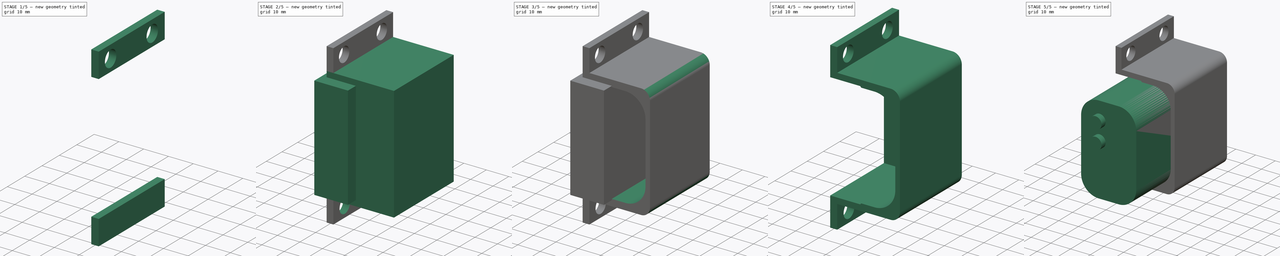
[diagram: build sequence overview — one tinted view per stage of 5, left to right]
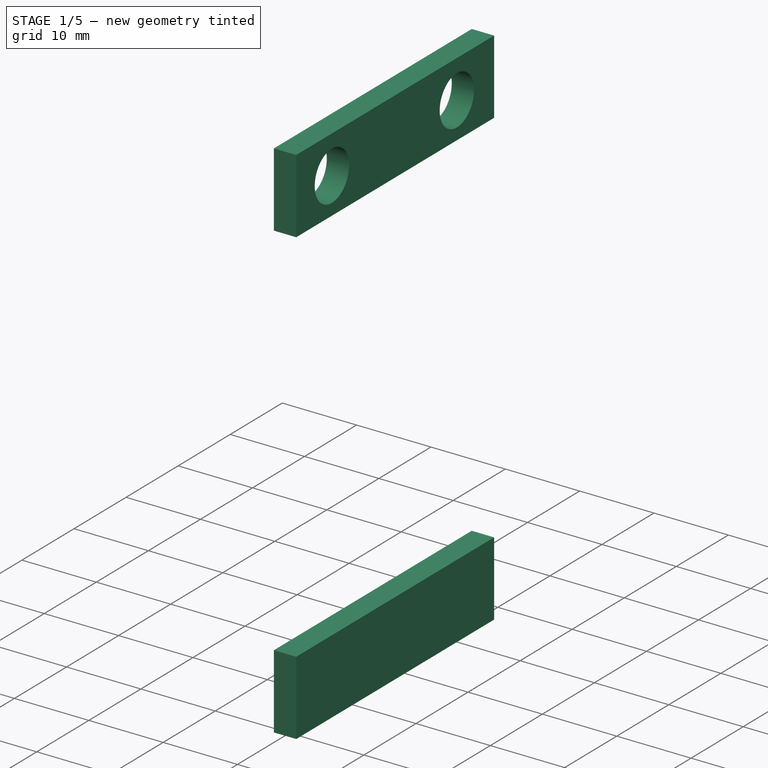
[diagram: stage 1 of 5 — iso view after this stage's code; geometry added in this stage tinted green]
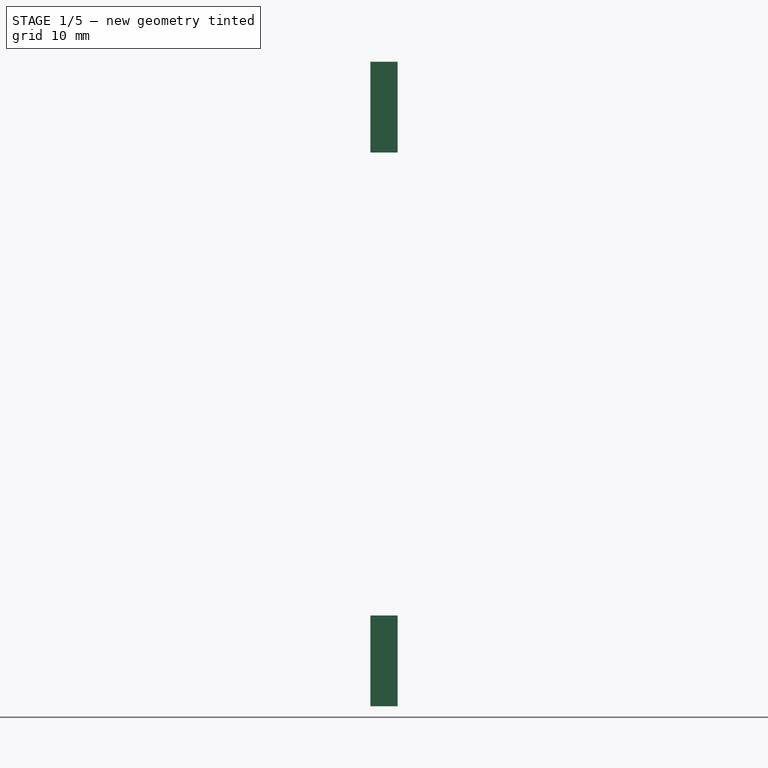
[diagram: stage 1 of 5 — front view after this stage's code; geometry added in this stage tinted green]
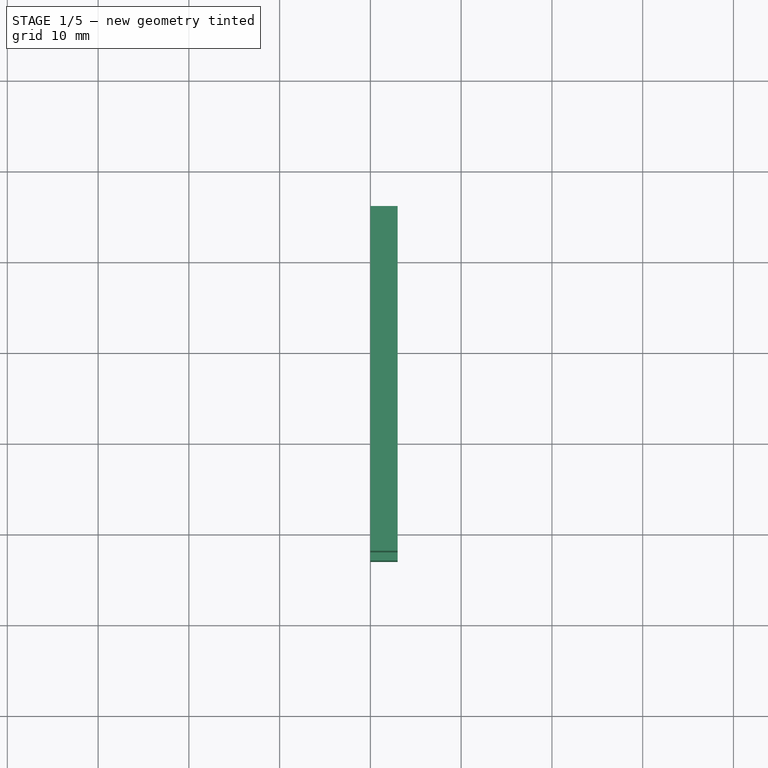
[diagram: stage 1 of 5 — top view after this stage's code; geometry added in this stage tinted green]
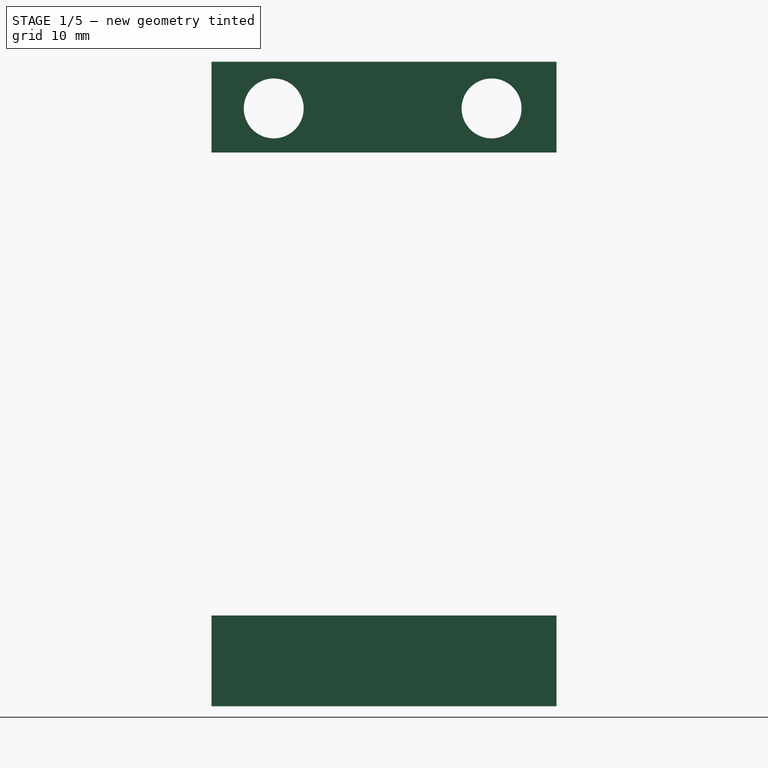
[diagram: stage 1 of 5 — right view after this stage's code; geometry added in this stage tinted green]
FCSTD DOCUMENT  (FreeCAD 0.16R6712 (Git))
Label: AS
License: All rights reserved
LicenseURL: http://en.wikipedia.org/wiki/All_rights_reserved
objects: Sketcher::SketchObject×6, PartDesign::Pad×4, Part::Box×4, Part::Cut×2, Part::Chamfer×2, PartDesign::Pocket×2, Part::Fillet×1, Part::MultiFuse×1
note: 28 computed .brp shape members not serialized (recipe doc carries the construction recipe); baked Part::Feature solids carry a one-line shape summary decoded from their .brp

FEATURE [Part::Box] Box002  label="Cubo002"
  Height = 10
  Length = 3
  Placement = pos=(0,-33,-13) rot=(0,0,1;0rad)
  Width = 38
FEATURE [Part::Box] Box003  label="Cubo003"
  Height = 10
  Length = 3
  Placement = pos=(0,-33,48) rot=(0,0,1;0rad)
  Width = 38
FEATURE [Sketcher::SketchObject] Sketch003
  Placement = pos=(3,-33,48) rot=(0.57735,0.57735,0.57735;2.0944rad)
  Support = -> Box003 [Face2]
  sketch-geometry (3):
    g0: Circle CenterX=6.8496 CenterY=4.86339 CenterZ=0 NormalX=0 NormalY=0 NormalZ=1 Radius=3.3
    g1: Circle CenterX=30.854 CenterY=4.86339 CenterZ=0 NormalX=0 NormalY=0 NormalZ=1 Radius=3.3
    g2: LineSegment [constr] StartX=6.8496 StartY=4.86339 StartZ=0 EndX=30.854 EndY=4.86339 EndZ=0
  constraints (5):
    c: Radius(g0) = 3.3
    c: Equal(g0,g1) = 3.3
    c: Coincident(g2,g0)
    c: Coincident(g2,g1)
    c: Horizontal(g2)
FEATURE [PartDesign::Pocket] Pocket001
  Length = 5
  Placement = pos=(0,-33,48) rot=(0,0,1;0rad)
  Sketch = -> Sketch003
  Type = 0
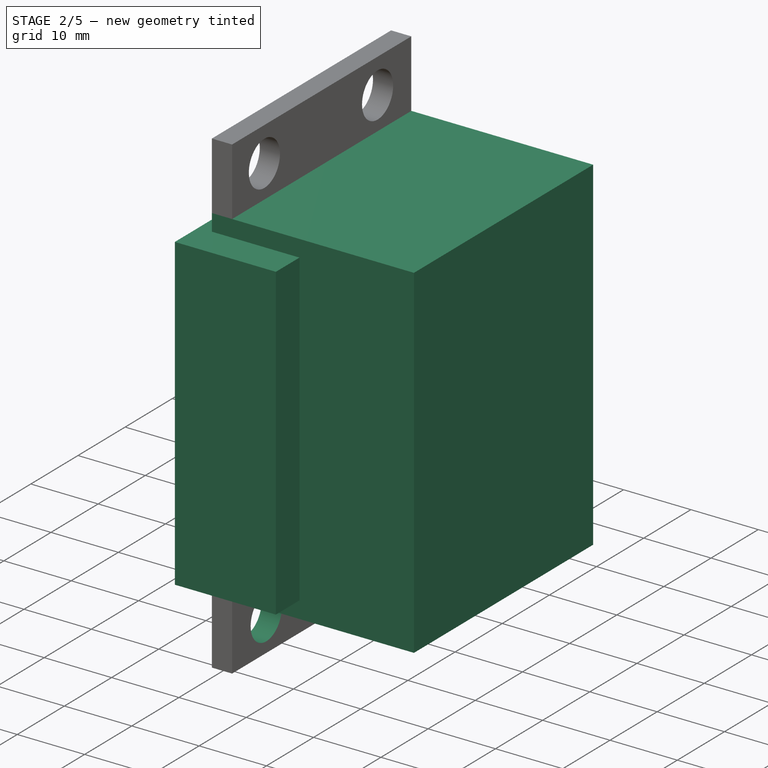
[diagram: stage 2 of 5 — iso view after this stage's code; geometry added in this stage tinted green]
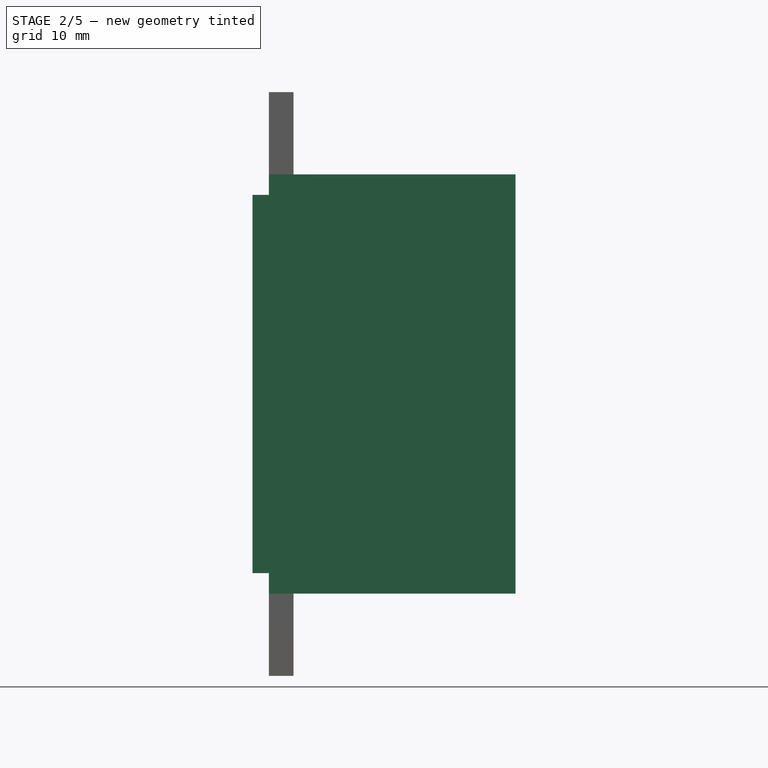
[diagram: stage 2 of 5 — front view after this stage's code; geometry added in this stage tinted green]
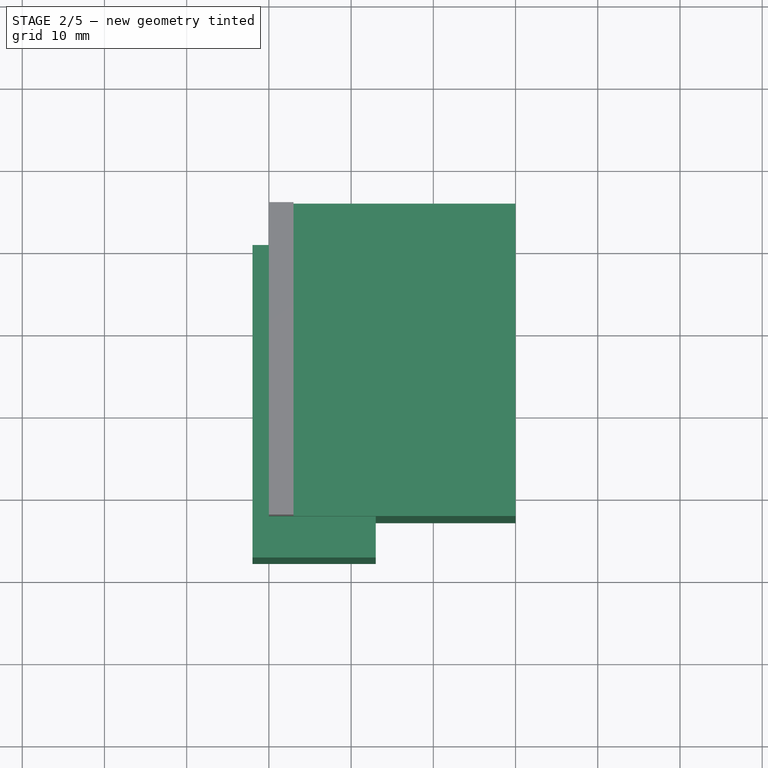
[diagram: stage 2 of 5 — top view after this stage's code; geometry added in this stage tinted green]
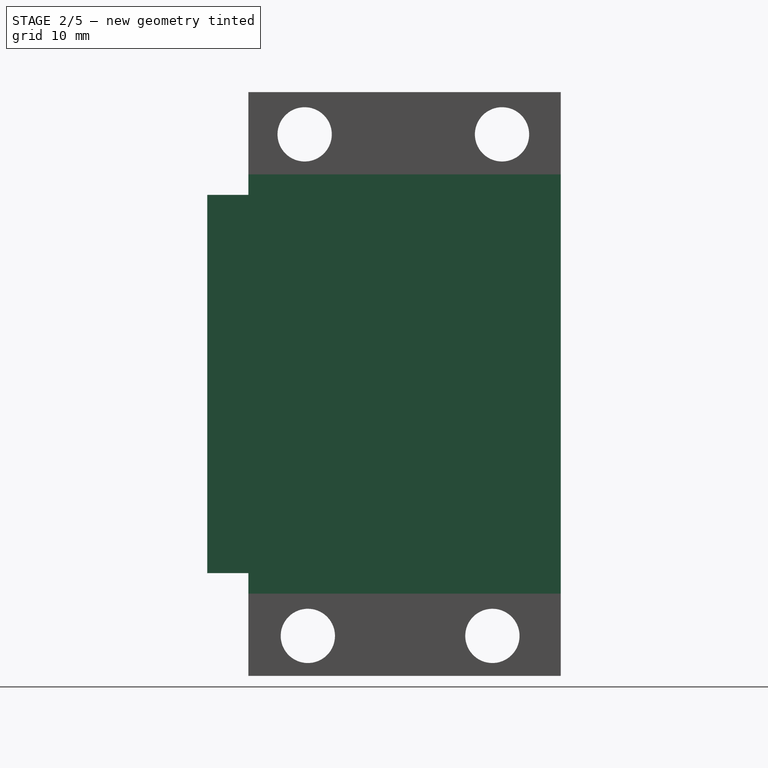
[diagram: stage 2 of 5 — right view after this stage's code; geometry added in this stage tinted green]
FEATURE [Part::Box] Box  label="Cubo"
  Height = 51
  Length = 30
  Placement = pos=(0,-33,-3) rot=(0,0,1;0rad)
  Width = 38
FEATURE [Part::Box] Box001  label="Cubo001"
  Height = 46
  Length = 15
  Placement = pos=(-2,-38,-0.5) rot=(0,0,1;0rad)
  Width = 38
FEATURE [Sketcher::SketchObject] Sketch002
  Placement = pos=(3,-33,-13) rot=(0.57735,0.57735,0.57735;2.0944rad)
  Support = -> Box002 [Face2]
  sketch-geometry (6):
    g0: Circle CenterX=7.23731 CenterY=4.86262 CenterZ=0 NormalX=0 NormalY=0 NormalZ=1 Radius=3.3
    g1: Circle CenterX=29.6847 CenterY=4.86262 CenterZ=0 NormalX=0 NormalY=0 NormalZ=1 Radius=3.3
    g2: LineSegment [constr] StartX=29.6847 StartY=4.86262 StartZ=0 EndX=7.23731 EndY=4.86262 EndZ=0
    g3: Circle CenterX=7.88607 CenterY=65.8468 CenterZ=0 NormalX=0 NormalY=0 NormalZ=1 Radius=3.3
    g4: LineSegment [constr] StartX=30.3335 StartY=65.8468 StartZ=0 EndX=7.88607 EndY=65.8468 EndZ=0
    g5: Circle CenterX=30.3335 CenterY=65.8468 CenterZ=0 NormalX=0 NormalY=0 NormalZ=1 Radius=3.3
  constraints (10):
    c: Radius(g0) = 3.3
    c: Equal(g0,g1) = 3.3
    c: Coincident(g2,g1)
    c: Coincident(g2,g0)
    c: Horizontal(g2)
    c: Equal(g0,g3) = 3.3
    c: Equal(g3,g5) = 3.3
    c: Coincident(g4,g5)
    c: Coincident(g4,g3)
    c: Horizontal(g4)
FEATURE [PartDesign::Pocket] Pocket
  Length = 5
  Placement = pos=(0,-33,-13) rot=(0,0,1;0rad)
  Sketch = -> Sketch002
  Type = 0
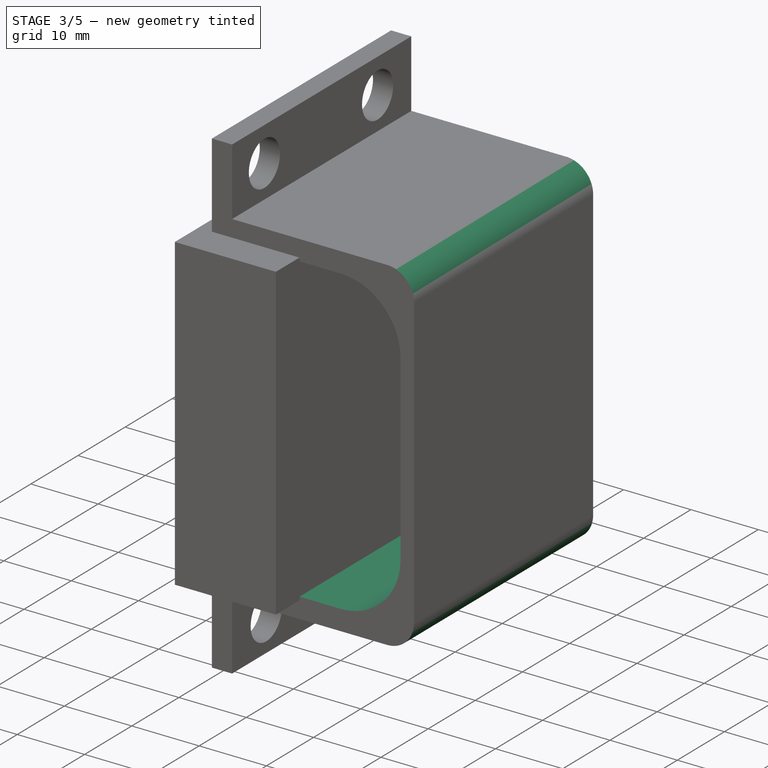
[diagram: stage 3 of 5 — iso view after this stage's code; geometry added in this stage tinted green]
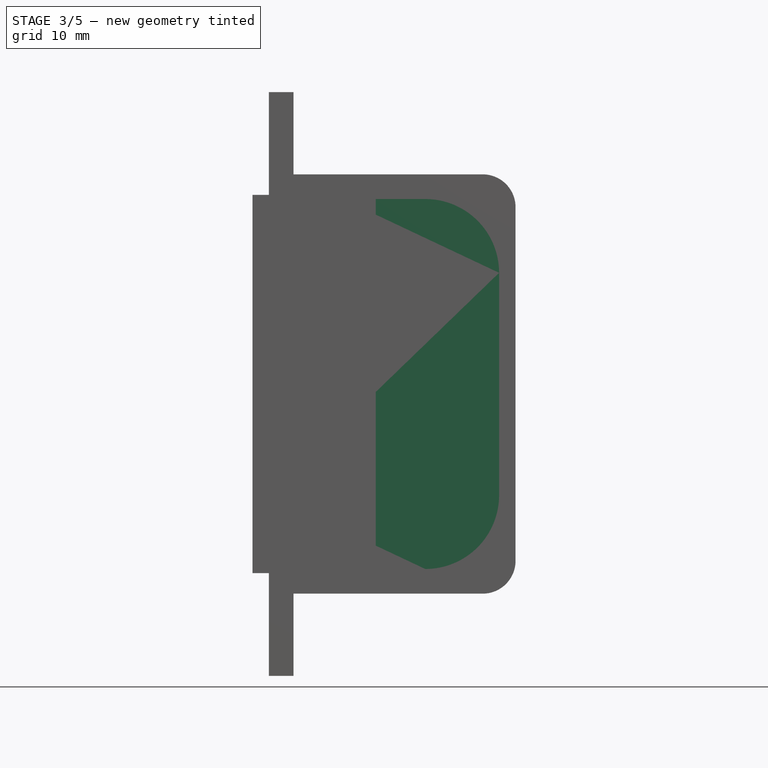
[diagram: stage 3 of 5 — front view after this stage's code; geometry added in this stage tinted green]
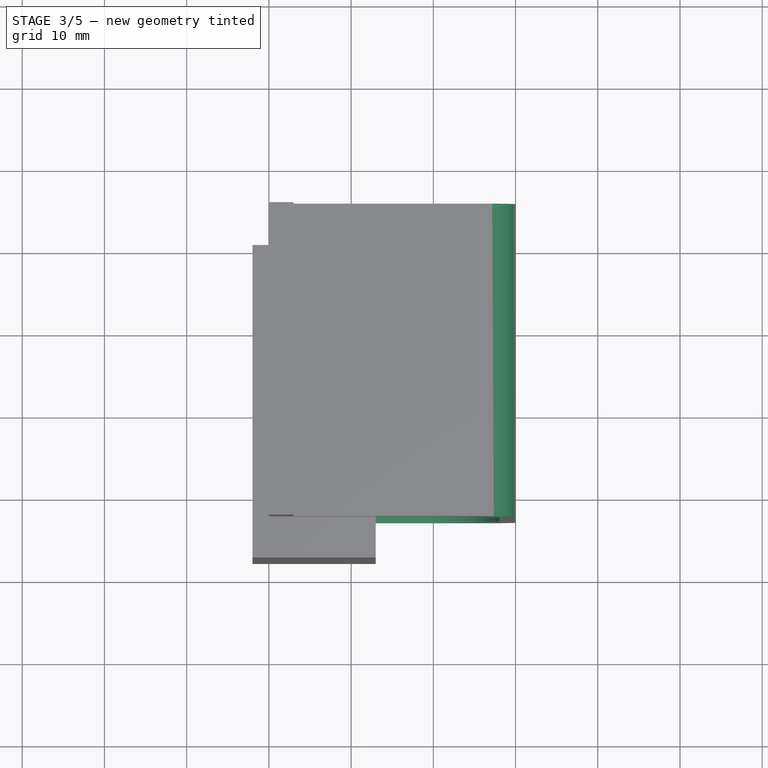
[diagram: stage 3 of 5 — top view after this stage's code; geometry added in this stage tinted green]
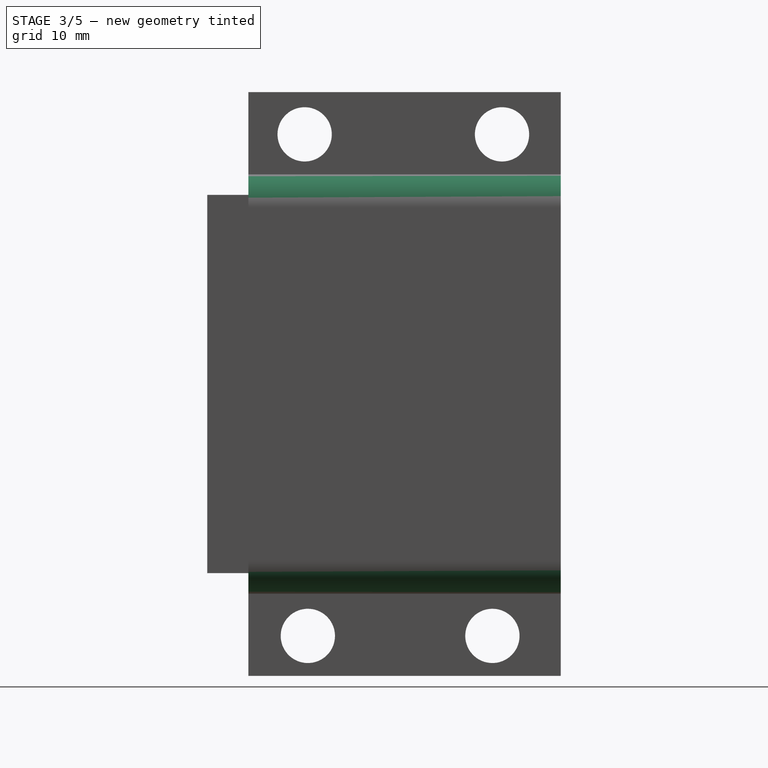
[diagram: stage 3 of 5 — right view after this stage's code; geometry added in this stage tinted green]
FEATURE [Sketcher::SketchObject] Sketch
  Placement = pos=(0,0,0) rot=(1,0,0;1.5708rad)
  sketch-geometry (34):
    g0: LineSegment [constr] StartX=0 StartY=0 StartZ=0 EndX=28 EndY=0 EndZ=0
    g1: LineSegment [constr] StartX=28 StartY=0 StartZ=0 EndX=28 EndY=45 EndZ=0
    g2: LineSegment [constr] StartX=28 StartY=45 StartZ=0 EndX=0 EndY=45 EndZ=0
    g3: LineSegment [constr] StartX=0 StartY=45 StartZ=0 EndX=0 EndY=0 EndZ=0
    g4: LineSegment [constr] StartX=0 StartY=45 StartZ=0 EndX=28 EndY=17 EndZ=0
    g5: LineSegment [constr] StartX=28 StartY=45 StartZ=0 EndX=0 EndY=17 EndZ=0
    g6: LineSegment [constr] StartX=28 StartY=0 StartZ=0 EndX=0 EndY=28 EndZ=0
    g7: LineSegment [constr] StartX=0 StartY=45 StartZ=0 EndX=8.97473 EndY=36.0253 EndZ=0
    g8: LineSegment [constr] StartX=28 StartY=0 StartZ=0 EndX=19.0253 EndY=8.97473 EndZ=0
    g9: LineSegment [constr] StartX=19.0253 StartY=8.97473 StartZ=0 EndX=8.97473 EndY=8.97473 EndZ=0
    g10: LineSegment [constr] StartX=8.97473 StartY=8.97473 StartZ=0 EndX=8.97473 EndY=36.0253 EndZ=0
    g11: LineSegment [constr] StartX=8.97473 StartY=36.0253 StartZ=0 EndX=19.0253 EndY=36.0253 EndZ=0
    g12: LineSegment [constr] StartX=19.0253 StartY=36.0253 StartZ=0 EndX=19.0253 EndY=8.97473 EndZ=0
    g13: GeomPoint [constr] X=0 Y=36.0253 Z=0
    g14: GeomPoint [constr] X=28 Y=36.0253 Z=0
    g15: GeomPoint [constr] X=19.0253 Y=45 Z=0
    g16: GeomPoint [constr] X=8.97473 Y=45 Z=0
    g17: GeomPoint [constr] X=0 Y=8.97475 Z=0
    g18: GeomPoint [constr] X=8.97473 Y=0 Z=0
    g19: GeomPoint [constr] X=19.0253 Y=0 Z=0
    g20: GeomPoint [constr] X=28 Y=8.97475 Z=0
    g21: ArcOfCircle CenterX=8.97473 CenterY=36.0253 CenterZ=0 NormalX=0 NormalY=0 NormalZ=1 Radius=8.97473 StartAngle=1.5708 EndAngle=3.14159
    g22: ArcOfCircle CenterX=19.0253 CenterY=36.0253 CenterZ=0 NormalX=0 NormalY=0 NormalZ=1 Radius=8.97473 StartAngle=6.28318 EndAngle=7.85398
    g23: ArcOfCircle CenterX=19.0253 CenterY=8.97473 CenterZ=0 NormalX=0 NormalY=0 NormalZ=1 Radius=8.97473 StartAngle=4.71239 EndAngle=6.28319
    g24: ArcOfCircle CenterX=8.97473 CenterY=8.97473 CenterZ=0 NormalX=0 NormalY=0 NormalZ=1 Radius=8.97473 StartAngle=3.14159 EndAngle=4.71239
    g25: LineSegment [constr] StartX=8.97473 StartY=45 StartZ=0 EndX=8.97473 EndY=36.0253 EndZ=0
    g26: LineSegment [constr] StartX=19.0253 StartY=45 StartZ=0 EndX=19.0253 EndY=36.0253 EndZ=0
    g27: LineSegment [constr] StartX=8.97473 StartY=0 StartZ=0 EndX=8.97473 EndY=8.97473 EndZ=0
    g28: LineSegment [constr] StartX=19.0253 StartY=0 StartZ=0 EndX=19.0253 EndY=8.97473 EndZ=0
    g29: LineSegment [constr] StartX=8.97473 StartY=36.0253 StartZ=0 EndX=0 EndY=36.0253 EndZ=0
    g30: LineSegment StartX=0 StartY=36.0253 StartZ=0 EndX=0 EndY=8.97475 EndZ=0
    g31: LineSegment StartX=8.97473 StartY=45 StartZ=0 EndX=19.0253 EndY=45 EndZ=0
    g32: LineSegment StartX=28 StartY=36.0253 StartZ=0 EndX=28 EndY=8.97475 EndZ=0
    g33: LineSegment StartX=19.0253 StartY=0 StartZ=0 EndX=8.97473 EndY=0 EndZ=0
  constraints (77):
    c: Coincident(g0,g1)
    c: Coincident(g1,g2)
    c: Coincident(g2,g3)
    c: Coincident(g3,g0)
    c: Horizontal(g2)
    c: Vertical(g1)
    c: Vertical(g3)
    c: Coincident(g0,g-1)
    c: DistanceY(g1,g1) = 45
    c: DistanceX(g2,g2) = 28
    c: Coincident(g4,g2)
    c: PointOnObject(g4,g1)
    c: Angle(g4,g2) = 0.785398
    c: Coincident(g5,g1)
    c: PointOnObject(g5,g3)
    c: Coincident(g6,g0)
    c: PointOnObject(g6,g3)
    c: Angle(g6,g0) = 0.785398
    c: Angle(g2,g5) = 0.785398
    c: Coincident(g7,g2)
    c: Coincident(g8,g0)
    c: PointOnObject(g8,g6)
    c: Equal(g7,g8)
    c: Coincident(g9,g10)
    c: Coincident(g10,g11)
    c: Coincident(g11,g12)
    c: Coincident(g12,g9)
    c: Horizontal(g9)
    c: Horizontal(g11)
    c: Vertical(g10)
    c: Vertical(g12)
    c: Coincident(g9,g8)
    c: PointOnObject(g0,g-1)
    c: PointOnObject(g13,g3)
    c: PointOnObject(g16,g2)
    c: PointOnObject(g15,g2)
    c: PointOnObject(g14,g1)
    c: PointOnObject(g20,g1)
    c: PointOnObject(g19,g0)
    c: PointOnObject(g18,g0)
    c: PointOnObject(g17,g3)
    c: Coincident(g21,g7)
    c: Coincident(g21,g13)
    c: Coincident(g21,g16)
    c: Coincident(g22,g11)
    c: Coincident(g22,g15)
    c: Coincident(g22,g14)
    c: Coincident(g23,g8)
    c: Coincident(g23,g19)
    c: Coincident(g23,g20)
    c: Coincident(g24,g9)
    c: Coincident(g24,g18)
    c: Coincident(g24,g17)
    c: Coincident(g25,g16)
    c: Coincident(g25,g10)
    c: Vertical(g25)
    c: Coincident(g26,g15)
    c: Coincident(g26,g11)
    c: Vertical(g26)
    c: Coincident(g27,g18)
    c: Coincident(g27,g9)
    c: Vertical(g27)
    c: Coincident(g28,g19)
    c: Coincident(g28,g8)
    c: Vertical(g28)
    c: Coincident(g29,g7)
    c: Coincident(g29,g13)
    c: Horizontal(g29)
    c: Coincident(g7,g10)
    c: Coincident(g30,g13)
    c: Coincident(g30,g17)
    c: Coincident(g31,g16)
    c: Coincident(g31,g15)
    c: Coincident(g32,g14)
    c: Coincident(g32,g20)
    c: Coincident(g33,g19)
    c: Coincident(g33,g18)
FEATURE [PartDesign::Pad] Pad
  Length = 58
  Length2 = 100
  Placement = pos=(0,0,0) rot=(1,0,0;1.5708rad)
  Sketch = -> Sketch
  Type = 0
FEATURE [Sketcher::SketchObject] Sketch001
  Placement = pos=(0,-58,0) rot=(1,0,0;1.5708rad)
  Support = -> Pad [Face10]
  sketch-geometry (3):
    g0: Circle CenterX=9.3858 CenterY=35.94 CenterZ=0 NormalX=0 NormalY=0 NormalZ=1 Radius=3.08287
    g1: Circle CenterX=9.3858 CenterY=26.4856 CenterZ=0 NormalX=0 NormalY=0 NormalZ=1 Radius=3.08287
    g2: LineSegment [constr] StartX=9.3858 StartY=35.94 StartZ=0 EndX=9.3858 EndY=26.4856 EndZ=0
  constraints (4):
    c: Coincident(g2,g0)
    c: Coincident(g2,g1)
    c: Vertical(g2)
    c: Equal(g1,g0)
FEATURE [PartDesign::Pad] Pad001
  Length = 3
  Length2 = 100
  Placement = pos=(0,0,0) rot=(1,0,0;1.5708rad)
  Sketch = -> Sketch001
  Type = 0
FEATURE [Part::Fillet] Fillet
  Base = -> Box
  Edges = 2 edges r=4: [Edge6,Edge8]
FEATURE [Part::Cut] Cut
  Base = -> Fillet
  Tool = -> Pad001
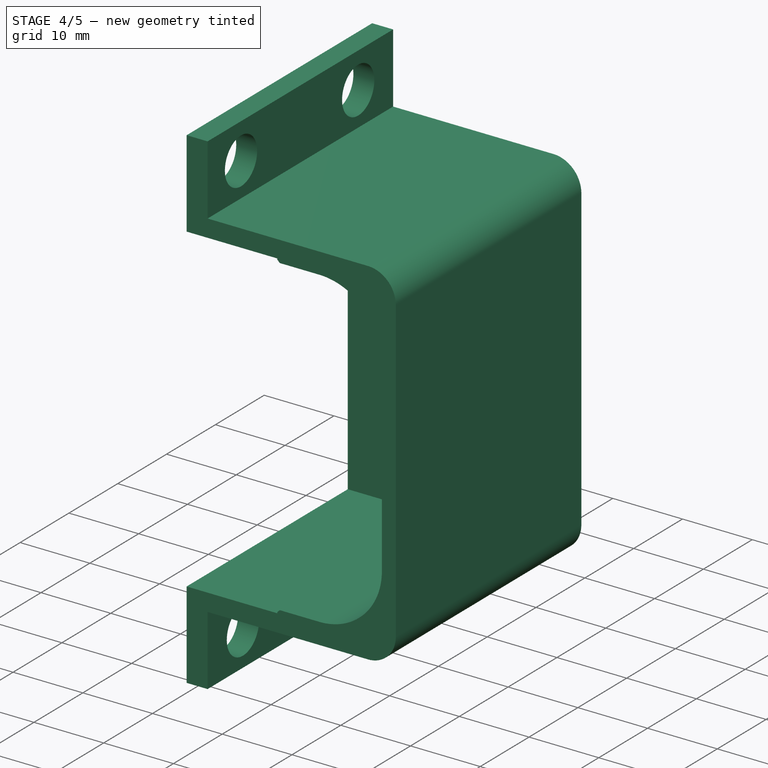
[diagram: stage 4 of 5 — iso view after this stage's code; geometry added in this stage tinted green]
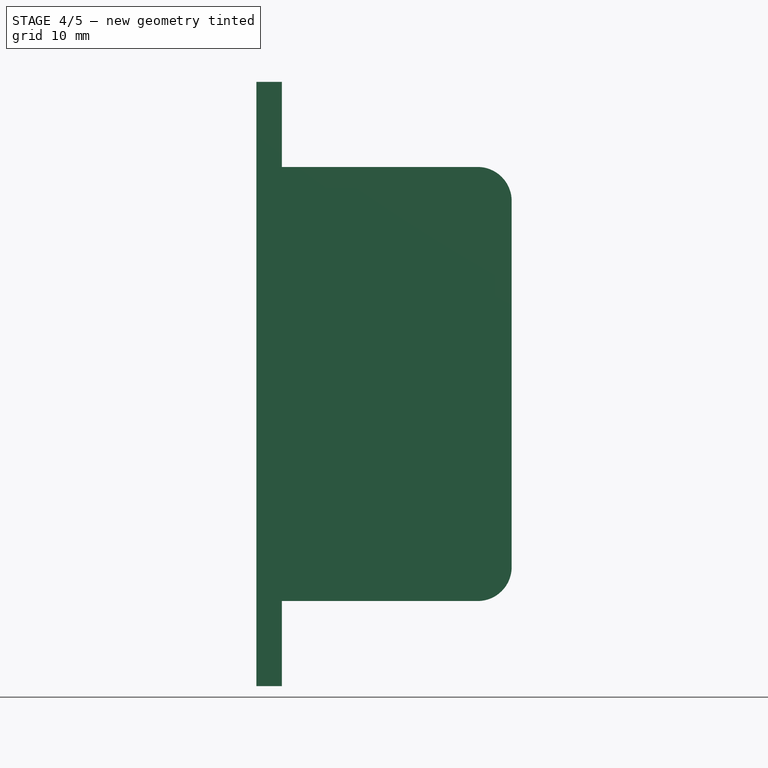
[diagram: stage 4 of 5 — front view after this stage's code; geometry added in this stage tinted green]
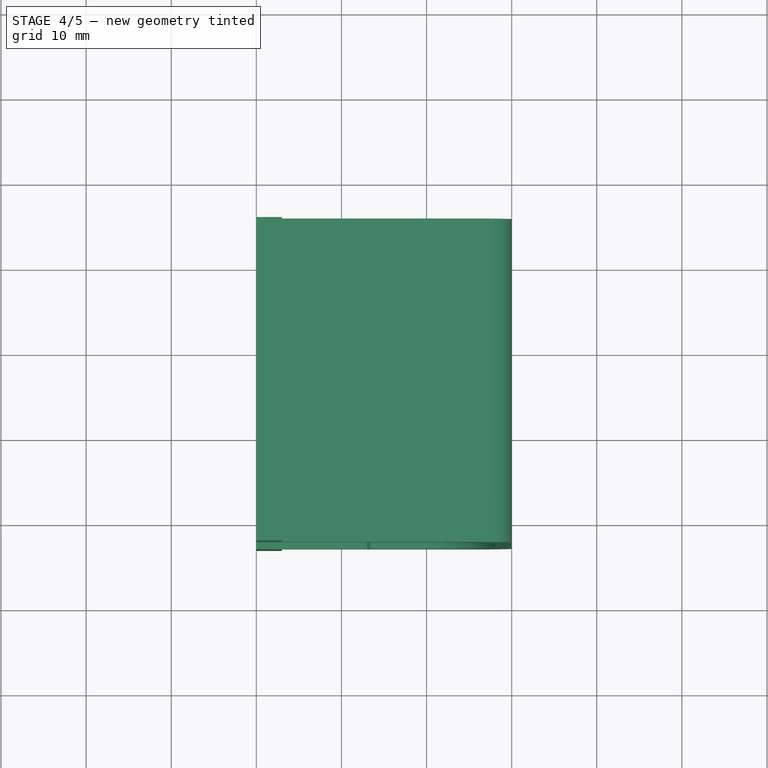
[diagram: stage 4 of 5 — top view after this stage's code; geometry added in this stage tinted green]
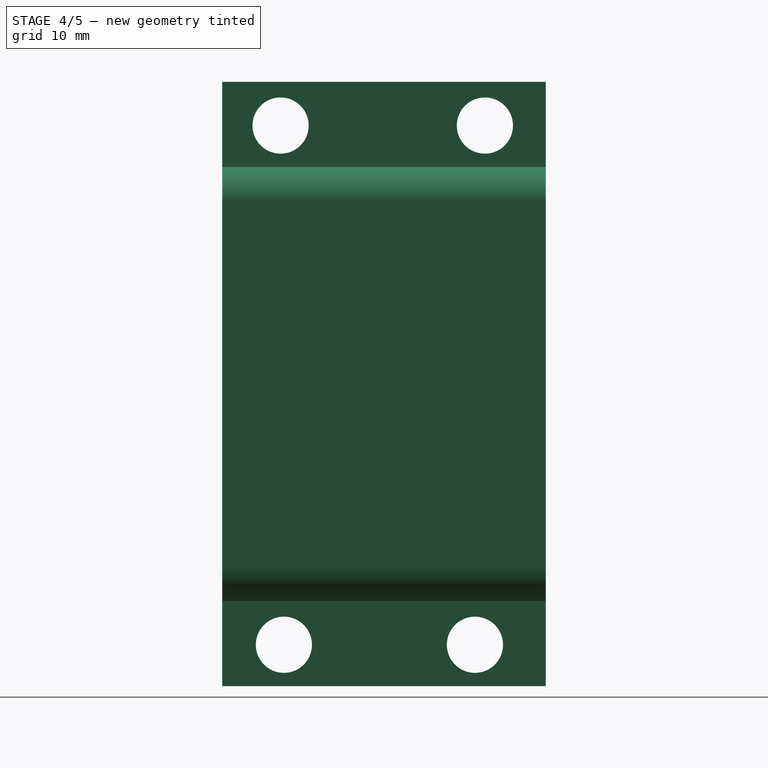
[diagram: stage 4 of 5 — right view after this stage's code; geometry added in this stage tinted green]
FEATURE [Part::Cut] Cut001
  Base = -> Cut
  Tool = -> Box001
FEATURE [Part::Chamfer] Chamfer
  Base = -> Cut001
  Edges = 1 edges r=0.35: [Edge36]
FEATURE [Part::Chamfer] Chamfer001
  Base = -> Chamfer
  Edges = 1 edges r=0.35: [Edge48]
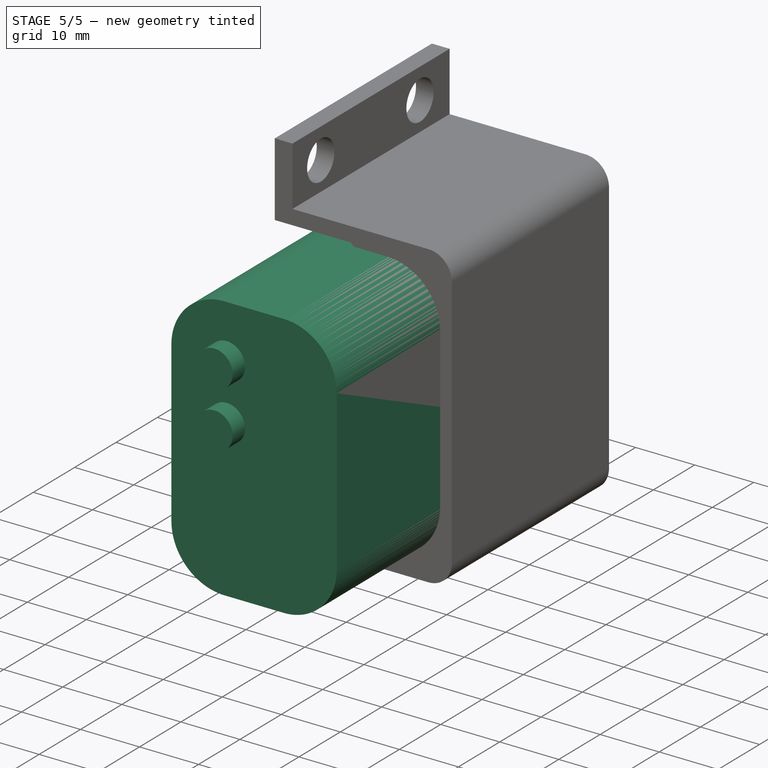
[diagram: stage 5 of 5 — iso view after this stage's code; geometry added in this stage tinted green]
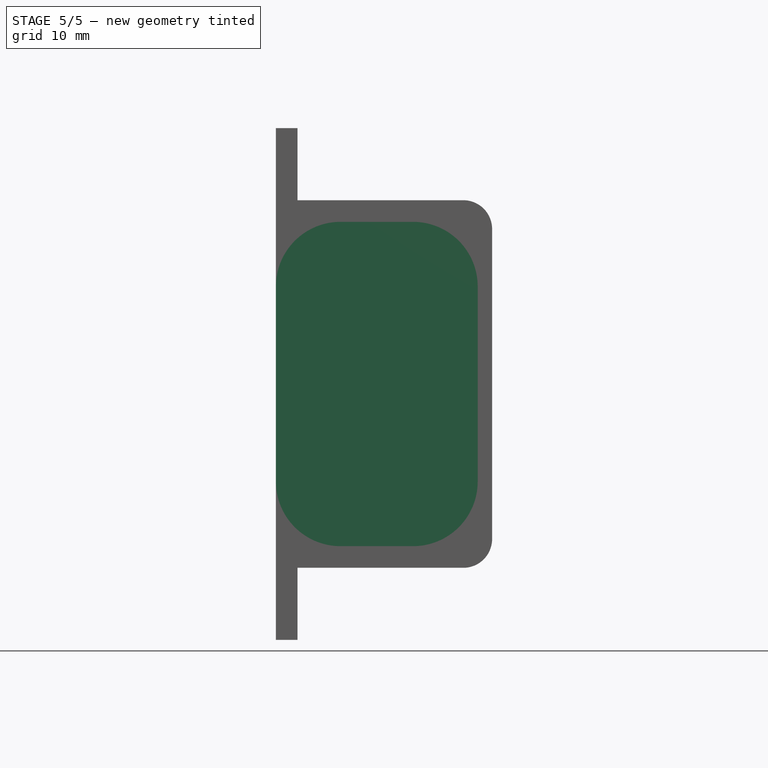
[diagram: stage 5 of 5 — front view after this stage's code; geometry added in this stage tinted green]
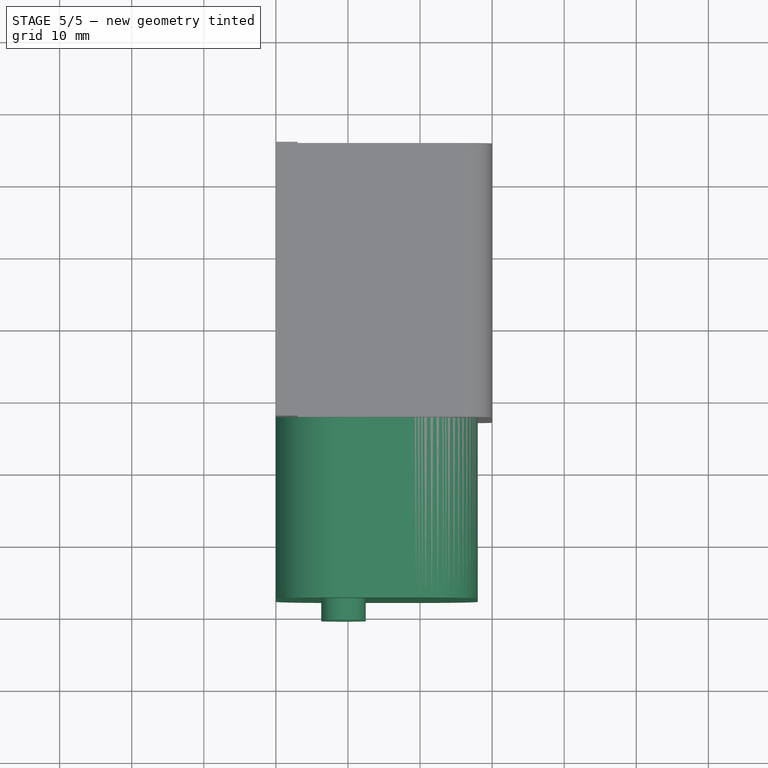
[diagram: stage 5 of 5 — top view after this stage's code; geometry added in this stage tinted green]
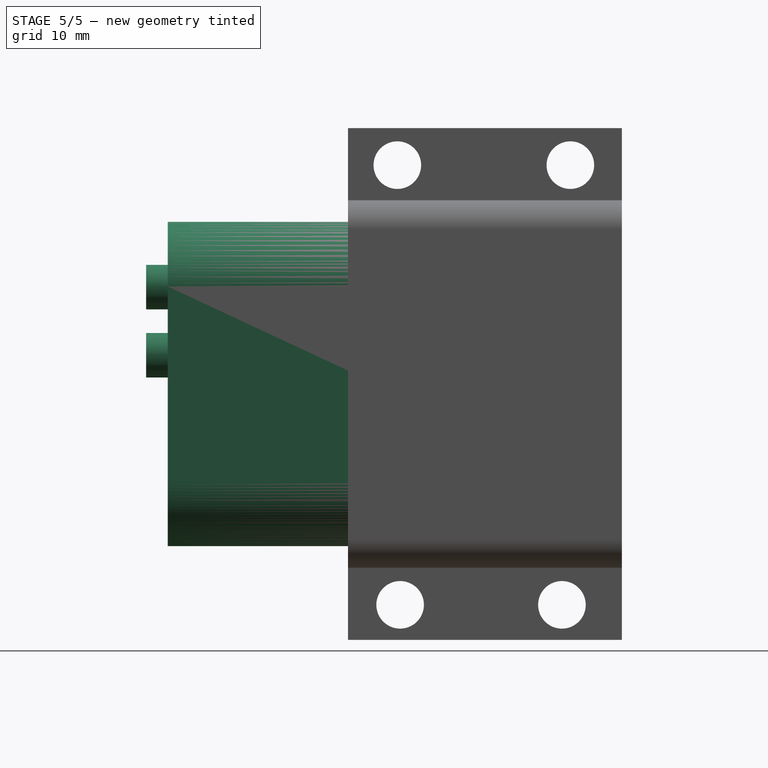
[diagram: stage 5 of 5 — right view after this stage's code; geometry added in this stage tinted green]
FEATURE [Sketcher::SketchObject] Sketch004
  Placement = pos=(0,0,0) rot=(1,0,0;1.5708rad)
  sketch-geometry (34):
    g0: LineSegment [constr] StartX=0 StartY=0 StartZ=0 EndX=28 EndY=0 EndZ=0
    g1: LineSegment [constr] StartX=28 StartY=0 StartZ=0 EndX=28 EndY=45 EndZ=0
    g2: LineSegment [constr] StartX=28 StartY=45 StartZ=0 EndX=0 EndY=45 EndZ=0
    g3: LineSegment [constr] StartX=0 StartY=45 StartZ=0 EndX=0 EndY=0 EndZ=0
    g4: LineSegment [constr] StartX=0 StartY=45 StartZ=0 EndX=28 EndY=17 EndZ=0
    g5: LineSegment [constr] StartX=28 StartY=45 StartZ=0 EndX=0 EndY=17 EndZ=0
    g6: LineSegment [constr] StartX=28 StartY=0 StartZ=0 EndX=0 EndY=28 EndZ=0
    g7: LineSegment [constr] StartX=0 StartY=45 StartZ=0 EndX=8.97473 EndY=36.0253 EndZ=0
    g8: LineSegment [constr] StartX=28 StartY=0 StartZ=0 EndX=19.0253 EndY=8.97473 EndZ=0
    g9: LineSegment [constr] StartX=19.0253 StartY=8.97473 StartZ=0 EndX=8.97473 EndY=8.97473 EndZ=0
    g10: LineSegment [constr] StartX=8.97473 StartY=8.97473 StartZ=0 EndX=8.97473 EndY=36.0253 EndZ=0
    g11: LineSegment [constr] StartX=8.97473 StartY=36.0253 StartZ=0 EndX=19.0253 EndY=36.0253 EndZ=0
    g12: LineSegment [constr] StartX=19.0253 StartY=36.0253 StartZ=0 EndX=19.0253 EndY=8.97473 EndZ=0
    g13: GeomPoint [constr] X=0 Y=36.0253 Z=0
    g14: GeomPoint [constr] X=28 Y=36.0253 Z=0
    g15: GeomPoint [constr] X=19.0253 Y=45 Z=0
    g16: GeomPoint [constr] X=8.97473 Y=45 Z=0
    g17: GeomPoint [constr] X=2.7e-11 Y=8.97475 Z=0
    g18: GeomPoint [constr] X=8.97473 Y=0 Z=0
    g19: GeomPoint [constr] X=19.0253 Y=0 Z=0
    g20: GeomPoint [constr] X=28 Y=8.97475 Z=0
    g21: ArcOfCircle CenterX=8.97473 CenterY=36.0253 CenterZ=0 NormalX=0 NormalY=0 NormalZ=1 Radius=8.97473 StartAngle=1.5708 EndAngle=3.14159
    g22: ArcOfCircle CenterX=19.0253 CenterY=36.0253 CenterZ=0 NormalX=0 NormalY=0 NormalZ=1 Radius=8.97473 StartAngle=6.28318 EndAngle=7.85398
    g23: ArcOfCircle CenterX=19.0253 CenterY=8.97473 CenterZ=0 NormalX=0 NormalY=0 NormalZ=1 Radius=8.97473 StartAngle=4.71239 EndAngle=6.28319
    g24: ArcOfCircle CenterX=8.97473 CenterY=8.97473 CenterZ=0 NormalX=0 NormalY=0 NormalZ=1 Radius=8.97473 StartAngle=3.14159 EndAngle=4.71239
    g25: LineSegment [constr] StartX=8.97473 StartY=45 StartZ=0 EndX=8.97473 EndY=36.0253 EndZ=0
    g26: LineSegment [constr] StartX=19.0253 StartY=45 StartZ=0 EndX=19.0253 EndY=36.0253 EndZ=0
    g27: LineSegment [constr] StartX=8.97473 StartY=0 StartZ=0 EndX=8.97473 EndY=8.97473 EndZ=0
    g28: LineSegment [constr] StartX=19.0253 StartY=0 StartZ=0 EndX=19.0253 EndY=8.97473 EndZ=0
    g29: LineSegment [constr] StartX=8.97473 StartY=36.0253 StartZ=0 EndX=0 EndY=36.0253 EndZ=0
    g30: LineSegment StartX=0 StartY=36.0253 StartZ=0 EndX=2.7e-11 EndY=8.97475 EndZ=0
    g31: LineSegment StartX=8.97473 StartY=45 StartZ=0 EndX=19.0253 EndY=45 EndZ=0
    g32: LineSegment StartX=28 StartY=36.0253 StartZ=0 EndX=28 EndY=8.97475 EndZ=0
    g33: LineSegment StartX=19.0253 StartY=0 StartZ=0 EndX=8.97473 EndY=0 EndZ=0
  constraints (77):
    c: Coincident(g0,g1)
    c: Coincident(g1,g2)
    c: Coincident(g2,g3)
    c: Coincident(g3,g0)
    c: Horizontal(g2)
    c: Vertical(g1)
    c: Vertical(g3)
    c: Coincident(g0,g-1)
    c: DistanceY(g1,g1) = 45
    c: DistanceX(g2,g2) = 28
    c: Coincident(g4,g2)
    c: PointOnObject(g4,g1)
    c: Angle(g4,g2) = 0.785398
    c: Coincident(g5,g1)
    c: PointOnObject(g5,g3)
    c: Coincident(g6,g0)
    c: PointOnObject(g6,g3)
    c: Angle(g6,g0) = 0.785398
    c: Angle(g2,g5) = 0.785398
    c: Coincident(g7,g2)
    c: Coincident(g8,g0)
    c: PointOnObject(g8,g6)
    c: Equal(g7,g8)
    c: Coincident(g9,g10)
    c: Coincident(g10,g11)
    c: Coincident(g11,g12)
    c: Coincident(g12,g9)
    c: Horizontal(g9)
    c: Horizontal(g11)
    c: Vertical(g10)
    c: Vertical(g12)
    c: Coincident(g9,g8)
    c: PointOnObject(g0,g-1)
    c: PointOnObject(g13,g3)
    c: PointOnObject(g16,g2)
    c: PointOnObject(g15,g2)
    c: PointOnObject(g14,g1)
    c: PointOnObject(g20,g1)
    c: PointOnObject(g19,g0)
    c: PointOnObject(g18,g0)
    c: PointOnObject(g17,g3)
    c: Coincident(g21,g7)
    c: Coincident(g21,g13)
    c: Coincident(g21,g16)
    c: Coincident(g22,g11)
    c: Coincident(g22,g15)
    c: Coincident(g22,g14)
    c: Coincident(g23,g8)
    c: Coincident(g23,g19)
    c: Coincident(g23,g20)
    c: Coincident(g24,g9)
    c: Coincident(g24,g18)
    c: Coincident(g24,g17)
    c: Coincident(g25,g16)
    c: Coincident(g25,g10)
    c: Vertical(g25)
    c: Coincident(g26,g15)
    c: Coincident(g26,g11)
    c: Vertical(g26)
    c: Coincident(g27,g18)
    c: Coincident(g27,g9)
    c: Vertical(g27)
    c: Coincident(g28,g19)
    c: Coincident(g28,g8)
    c: Vertical(g28)
    c: Coincident(g29,g7)
    c: Coincident(g29,g13)
    c: Horizontal(g29)
    c: Coincident(g7,g10)
    c: Coincident(g30,g13)
    c: Coincident(g30,g17)
    c: Coincident(g31,g16)
    c: Coincident(g31,g15)
    c: Coincident(g32,g14)
    c: Coincident(g32,g20)
    c: Coincident(g33,g19)
    c: Coincident(g33,g18)
FEATURE [PartDesign::Pad] Pad002
  Length = 58
  Length2 = 100
  Placement = pos=(0,0,0) rot=(1,0,0;1.5708rad)
  Sketch = -> Sketch004
  Type = 0
FEATURE [Sketcher::SketchObject] Sketch005
  Placement = pos=(0,-58,0) rot=(1,0,0;1.5708rad)
  Support = -> Pad002 [Face10]
  sketch-geometry (3):
    g0: Circle CenterX=9.3858 CenterY=35.94 CenterZ=0 NormalX=0 NormalY=0 NormalZ=1 Radius=3.08287
    g1: Circle CenterX=9.3858 CenterY=26.4856 CenterZ=0 NormalX=0 NormalY=0 NormalZ=1 Radius=3.08287
    g2: LineSegment [constr] StartX=9.3858 StartY=35.94 StartZ=0 EndX=9.3858 EndY=26.4856 EndZ=0
  constraints (4):
    c: Coincident(g2,g0)
    c: Coincident(g2,g1)
    c: Vertical(g2)
    c: Equal(g1,g0)
FEATURE [PartDesign::Pad] Pad003
  Length = 3
  Length2 = 100
  Placement = pos=(0,0,0) rot=(1,0,0;1.5708rad)
  Sketch = -> Sketch005
  Type = 0
FEATURE [Part::MultiFuse] Fusion
  Shapes = -> [Pocket,Chamfer001,Pocket001]
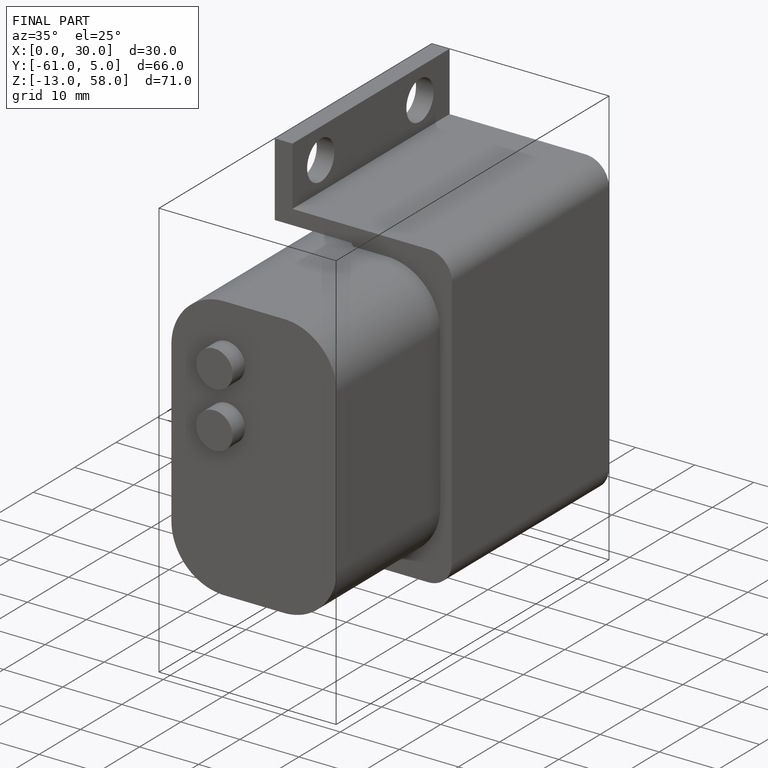
[diagram: finished part — iso view with bounding-box wireframe]
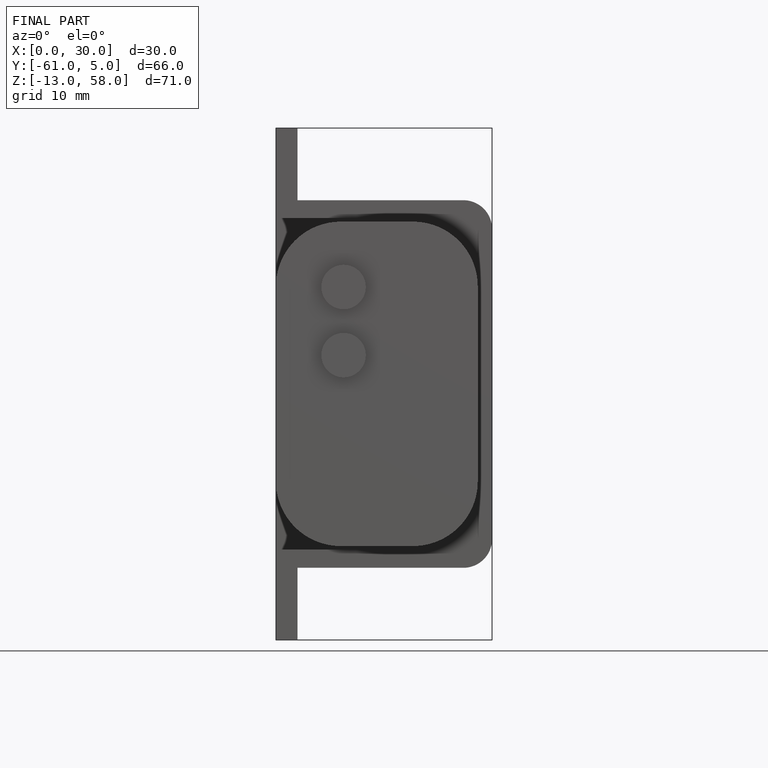
[diagram: finished part — front view with bounding-box wireframe]
